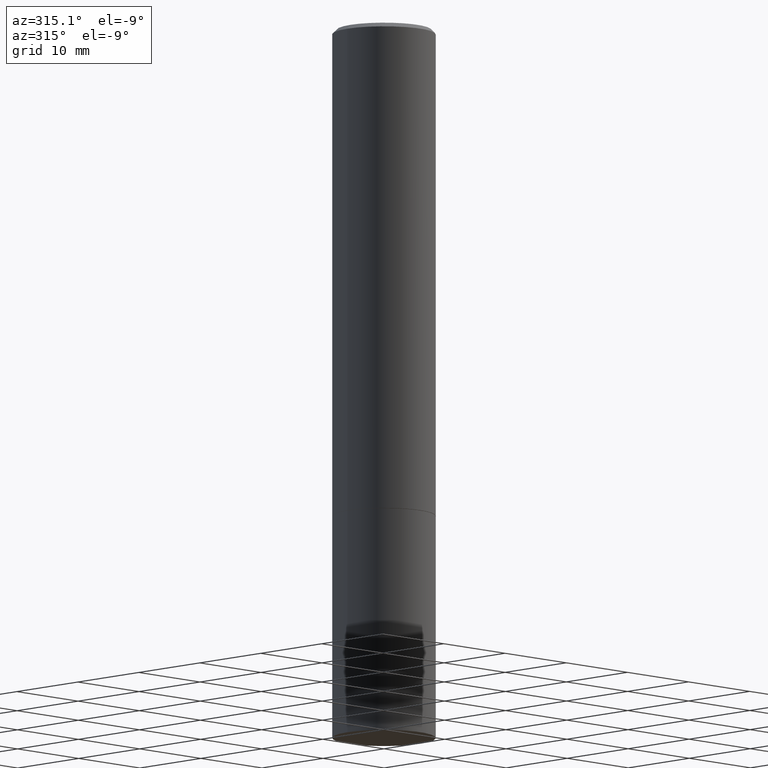
[diagram: clean part render]
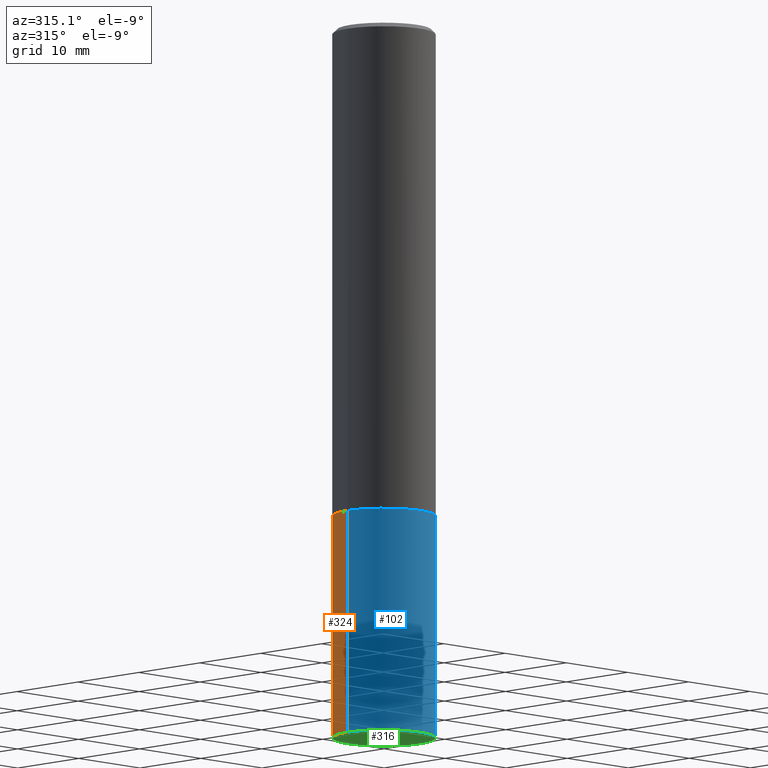
[diagram: same view with three faces highlighted in distinct colors, each labeled with its STEP entity id]
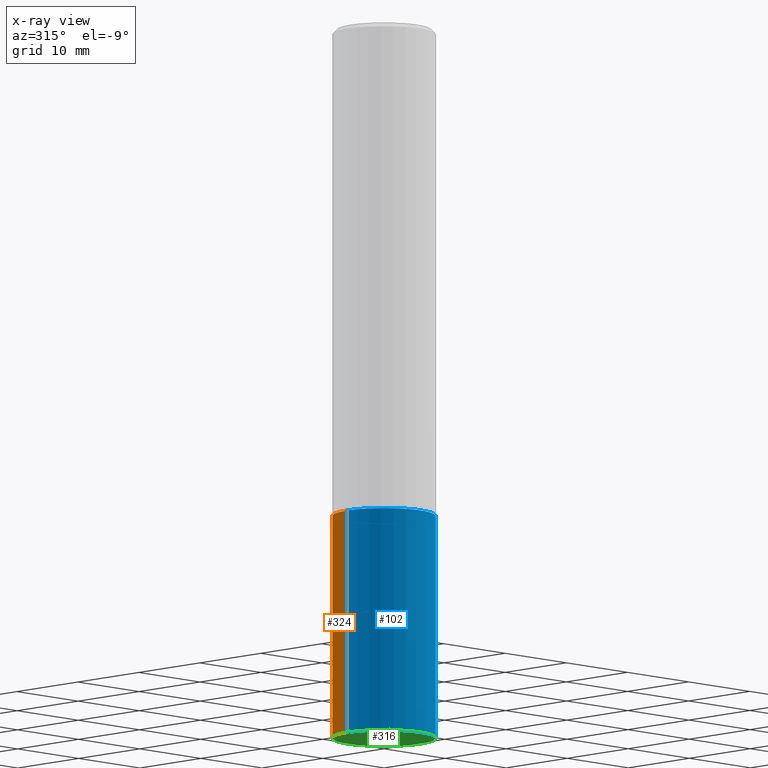
[diagram: x-ray of the same camera — body ghosted, the three highlighted faces saturated]
A machine part, auxiliary view with three faces highlighted in distinct colors.
The next image is the same camera in x-ray (body ghosted, the three faces saturated) — at least one of them is partly hidden behind the body in this view.
Their STEP definitions:

[orange] entity #324 — the highlighted cylindrical surface (partial cylindrical patch) has radius 5.9995 mm, axis along (-0, 0, 1).
#16 = CARTESIAN_POINT ( 'NONE',  ( -0.2361999999999999933, -7.943871479852467996E-15, -2.244100000000000428 ) ) ;
#17 = CARTESIAN_POINT ( 'NONE',  ( 5.487876547960065873E-29, -7.835233272497903917E-15, -2.244100000000000428 ) ) ;
#21 = DIRECTION ( 'NONE',  ( 1.000000000000000000, -6.982962677686269077E-15, 0.000000000000000000 ) ) ;
#22 = DIRECTION ( 'NONE',  ( 1.000000000000000000, -6.982962677686266711E-15, 4.876176775795936353E-29 ) ) ;
#23 = VERTEX_POINT ( 'NONE', #117 ) ;
#49 = EDGE_LOOP ( 'NONE', ( #360, #252, #105, #196 ) ) ;
#65 = LINE ( 'NONE', #148, #118 ) ;
#97 = VECTOR ( 'NONE', #209, 39.37007874015748143 ) ;
#100 = DIRECTION ( 'NONE',  ( -2.445468806185136597E-29, 3.491481338843145583E-15, 1.000000000000000000 ) ) ;
#105 = ORIENTED_EDGE ( 'NONE', *, *, #355, .F. ) ;
#110 = AXIS2_PLACEMENT_3D ( 'NONE', #17, #327, #21 ) ;
#117 = CARTESIAN_POINT ( 'NONE',  ( -0.2361999999999999933, -7.943871479852467996E-15, -3.267700000000000049 ) ) ;
#118 = VECTOR ( 'NONE', #320, 39.37007874015748143 ) ;
#126 = CARTESIAN_POINT ( 'NONE',  ( 0.2361999999999999933, -9.484609056967400443E-15, -2.244100000000000428 ) ) ;
#148 = CARTESIAN_POINT ( 'NONE',  ( 0.2361999999999999933, -1.649375784469496131E-15, 1.151752954443000088E-29 ) ) ;
#152 = AXIS2_PLACEMENT_3D ( 'NONE', #154, #100, #22 ) ;
#154 = CARTESIAN_POINT ( 'NONE',  ( 0.000000000000000000, 0.000000000000000000, 0.000000000000000000 ) ) ;
#159 = EDGE_CURVE ( 'NONE', #314, #176, #65, .T. ) ;
#173 = EDGE_CURVE ( 'NONE', #314, #23, #178, .T. ) ;
#176 = VERTEX_POINT ( 'NONE', #126 ) ;
#178 = CIRCLE ( 'NONE', #231, 0.2361999999999999933 ) ;
#182 = CARTESIAN_POINT ( 'NONE',  ( 7.991058417971171713E-29, -1.140911357093774644E-14, -3.267700000000000049 ) ) ;
#196 = ORIENTED_EDGE ( 'NONE', *, *, #159, .F. ) ;
#205 = CIRCLE ( 'NONE', #110, 0.2361999999999999933 ) ;
#209 = DIRECTION ( 'NONE',  ( -2.445468806185136877E-29, 3.491481338843145188E-15, 1.000000000000000000 ) ) ;
#211 = FACE_OUTER_BOUND ( 'NONE', #49, .T. ) ;
#231 = AXIS2_PLACEMENT_3D ( 'NONE', #182, #347, #323 ) ;
#244 = VERTEX_POINT ( 'NONE', #16 ) ;
#252 = ORIENTED_EDGE ( 'NONE', *, *, #335, .T. ) ;
#267 = LINE ( 'NONE', #275, #97 ) ;
#271 = CYLINDRICAL_SURFACE ( 'NONE', #152, 0.2361999999999999933 ) ;
#275 = CARTESIAN_POINT ( 'NONE',  ( -0.2361999999999999933, 1.678301941865356591E-15, -1.161852468318208757E-29 ) ) ;
#302 = CARTESIAN_POINT ( 'NONE',  ( 0.2361999999999999933, -1.305848935540724297E-14, -3.267700000000000049 ) ) ;
#314 = VERTEX_POINT ( 'NONE', #302 ) ;
#320 = DIRECTION ( 'NONE',  ( -2.445468806185136877E-29, 3.491481338843145188E-15, 1.000000000000000000 ) ) ;
#323 = DIRECTION ( 'NONE',  ( 1.000000000000000000, -6.982962677686265133E-15, 0.000000000000000000 ) ) ;
#324 = ADVANCED_FACE ( 'NONE', ( #211 ), #271, .T. ) ;
#327 = DIRECTION ( 'NONE',  ( -2.445468806185136597E-29, 3.491481338843145583E-15, 1.000000000000000000 ) ) ;
#335 = EDGE_CURVE ( 'NONE', #23, #244, #267, .T. ) ;
#347 = DIRECTION ( 'NONE',  ( -2.445468806185136597E-29, 3.491481338843145583E-15, 1.000000000000000000 ) ) ;
#355 = EDGE_CURVE ( 'NONE', #176, #244, #205, .T. ) ;
#360 = ORIENTED_EDGE ( 'NONE', *, *, #173, .T. ) ;

[blue] entity #102 — the highlighted cylindrical surface (partial cylindrical patch) has radius 5.9995 mm, axis along (-0, 0, 1).
#15 = DIRECTION ( 'NONE',  ( 1.000000000000000000, -6.982962677686269077E-15, 0.000000000000000000 ) ) ;
#16 = CARTESIAN_POINT ( 'NONE',  ( -0.2361999999999999933, -7.943871479852467996E-15, -2.244100000000000428 ) ) ;
#23 = VERTEX_POINT ( 'NONE', #117 ) ;
#38 = AXIS2_PLACEMENT_3D ( 'NONE', #344, #109, #202 ) ;
#40 = CARTESIAN_POINT ( 'NONE',  ( 5.487876547960065873E-29, -7.835233272497903917E-15, -2.244100000000000428 ) ) ;
#45 = EDGE_CURVE ( 'NONE', #23, #314, #192, .T. ) ;
#47 = EDGE_LOOP ( 'NONE', ( #156, #60, #337, #169 ) ) ;
#60 = ORIENTED_EDGE ( 'NONE', *, *, #45, .T. ) ;
#65 = LINE ( 'NONE', #148, #118 ) ;
#87 = DIRECTION ( 'NONE',  ( 1.000000000000000000, -6.982962677686266711E-15, 4.876176775795936353E-29 ) ) ;
#97 = VECTOR ( 'NONE', #209, 39.37007874015748143 ) ;
#102 = ADVANCED_FACE ( 'NONE', ( #180 ), #125, .T. ) ;
#109 = DIRECTION ( 'NONE',  ( -2.445468806185136597E-29, 3.491481338843145583E-15, 1.000000000000000000 ) ) ;
#117 = CARTESIAN_POINT ( 'NONE',  ( -0.2361999999999999933, -7.943871479852467996E-15, -3.267700000000000049 ) ) ;
#118 = VECTOR ( 'NONE', #320, 39.37007874015748143 ) ;
#125 = CYLINDRICAL_SURFACE ( 'NONE', #128, 0.2361999999999999933 ) ;
#126 = CARTESIAN_POINT ( 'NONE',  ( 0.2361999999999999933, -9.484609056967400443E-15, -2.244100000000000428 ) ) ;
#128 = AXIS2_PLACEMENT_3D ( 'NONE', #204, #203, #87 ) ;
#148 = CARTESIAN_POINT ( 'NONE',  ( 0.2361999999999999933, -1.649375784469496131E-15, 1.151752954443000088E-29 ) ) ;
#156 = ORIENTED_EDGE ( 'NONE', *, *, #335, .F. ) ;
#159 = EDGE_CURVE ( 'NONE', #314, #176, #65, .T. ) ;
#169 = ORIENTED_EDGE ( 'NONE', *, *, #220, .F. ) ;
#176 = VERTEX_POINT ( 'NONE', #126 ) ;
#180 = FACE_OUTER_BOUND ( 'NONE', #47, .T. ) ;
#183 = CIRCLE ( 'NONE', #242, 0.2361999999999999933 ) ;
#192 = CIRCLE ( 'NONE', #38, 0.2361999999999999933 ) ;
#202 = DIRECTION ( 'NONE',  ( 1.000000000000000000, -6.982962677686265133E-15, 0.000000000000000000 ) ) ;
#203 = DIRECTION ( 'NONE',  ( -2.445468806185136597E-29, 3.491481338843145583E-15, 1.000000000000000000 ) ) ;
#204 = CARTESIAN_POINT ( 'NONE',  ( 0.000000000000000000, 0.000000000000000000, 0.000000000000000000 ) ) ;
#209 = DIRECTION ( 'NONE',  ( -2.445468806185136877E-29, 3.491481338843145188E-15, 1.000000000000000000 ) ) ;
#220 = EDGE_CURVE ( 'NONE', #244, #176, #183, .T. ) ;
#227 = DIRECTION ( 'NONE',  ( -2.445468806185136597E-29, 3.491481338843145583E-15, 1.000000000000000000 ) ) ;
#242 = AXIS2_PLACEMENT_3D ( 'NONE', #40, #227, #15 ) ;
#244 = VERTEX_POINT ( 'NONE', #16 ) ;
#267 = LINE ( 'NONE', #275, #97 ) ;
#275 = CARTESIAN_POINT ( 'NONE',  ( -0.2361999999999999933, 1.678301941865356591E-15, -1.161852468318208757E-29 ) ) ;
#302 = CARTESIAN_POINT ( 'NONE',  ( 0.2361999999999999933, -1.305848935540724297E-14, -3.267700000000000049 ) ) ;
#314 = VERTEX_POINT ( 'NONE', #302 ) ;
#320 = DIRECTION ( 'NONE',  ( -2.445468806185136877E-29, 3.491481338843145188E-15, 1.000000000000000000 ) ) ;
#335 = EDGE_CURVE ( 'NONE', #23, #244, #267, .T. ) ;
#337 = ORIENTED_EDGE ( 'NONE', *, *, #159, .T. ) ;
#344 = CARTESIAN_POINT ( 'NONE',  ( 7.991058417971171713E-29, -1.140911357093774644E-14, -3.267700000000000049 ) ) ;

[green] entity #316 — the highlighted planar face has unit normal (0, -0, -1).
#23 = VERTEX_POINT ( 'NONE', #117 ) ;
#38 = AXIS2_PLACEMENT_3D ( 'NONE', #344, #109, #202 ) ;
#45 = EDGE_CURVE ( 'NONE', #23, #314, #192, .T. ) ;
#70 = ORIENTED_EDGE ( 'NONE', *, *, #173, .F. ) ;
#71 = FACE_OUTER_BOUND ( 'NONE', #246, .T. ) ;
#101 = DIRECTION ( 'NONE',  ( -1.000000000000000000, 6.982962677686265922E-15, -4.876176775795935793E-29 ) ) ;
#109 = DIRECTION ( 'NONE',  ( -2.445468806185136597E-29, 3.491481338843145583E-15, 1.000000000000000000 ) ) ;
#117 = CARTESIAN_POINT ( 'NONE',  ( -0.2361999999999999933, -7.943871479852467996E-15, -3.267700000000000049 ) ) ;
#158 = CARTESIAN_POINT ( 'NONE',  ( 1.649375784469575806E-15, 0.2361999999999885858, -3.267700000000001381 ) ) ;
#164 = ORIENTED_EDGE ( 'NONE', *, *, #45, .F. ) ;
#173 = EDGE_CURVE ( 'NONE', #314, #23, #178, .T. ) ;
#178 = CIRCLE ( 'NONE', #231, 0.2361999999999999933 ) ;
#182 = CARTESIAN_POINT ( 'NONE',  ( 7.991058417971171713E-29, -1.140911357093774644E-14, -3.267700000000000049 ) ) ;
#192 = CIRCLE ( 'NONE', #38, 0.2361999999999999933 ) ;
#202 = DIRECTION ( 'NONE',  ( 1.000000000000000000, -6.982962677686265133E-15, 0.000000000000000000 ) ) ;
#213 = AXIS2_PLACEMENT_3D ( 'NONE', #158, #241, #101 ) ;
#231 = AXIS2_PLACEMENT_3D ( 'NONE', #182, #347, #323 ) ;
#241 = DIRECTION ( 'NONE',  ( 2.438088387897960049E-29, -3.491481338843145188E-15, -1.000000000000000000 ) ) ;
#246 = EDGE_LOOP ( 'NONE', ( #70, #164 ) ) ;
#273 = PLANE ( 'NONE',  #213 ) ;
#302 = CARTESIAN_POINT ( 'NONE',  ( 0.2361999999999999933, -1.305848935540724297E-14, -3.267700000000000049 ) ) ;
#314 = VERTEX_POINT ( 'NONE', #302 ) ;
#316 = ADVANCED_FACE ( 'NONE', ( #71 ), #273, .T. ) ;
#323 = DIRECTION ( 'NONE',  ( 1.000000000000000000, -6.982962677686265133E-15, 0.000000000000000000 ) ) ;
#344 = CARTESIAN_POINT ( 'NONE',  ( 7.991058417971171713E-29, -1.140911357093774644E-14, -3.267700000000000049 ) ) ;
#347 = DIRECTION ( 'NONE',  ( -2.445468806185136597E-29, 3.491481338843145583E-15, 1.000000000000000000 ) ) ;